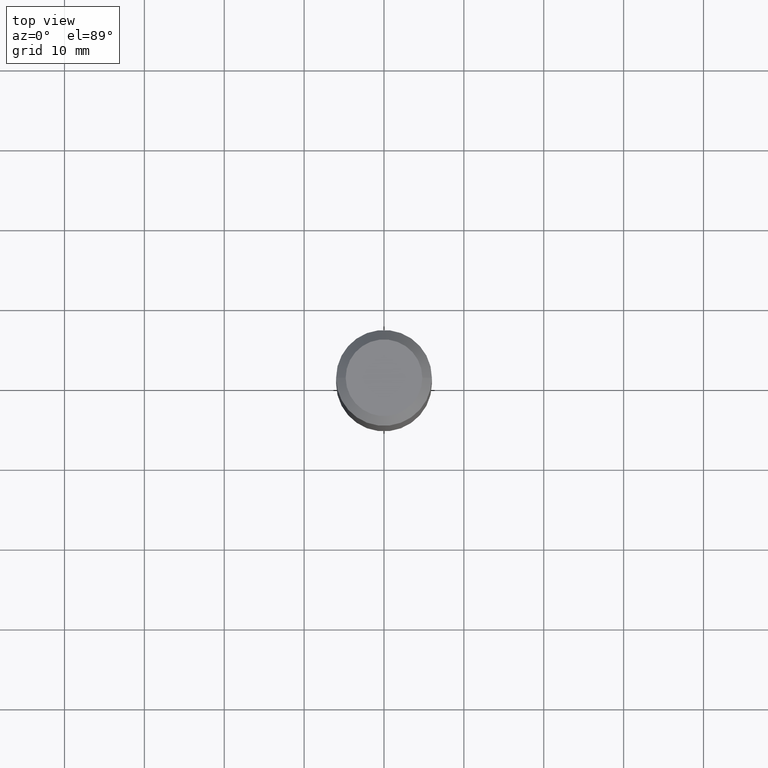
[diagram: clean part render]
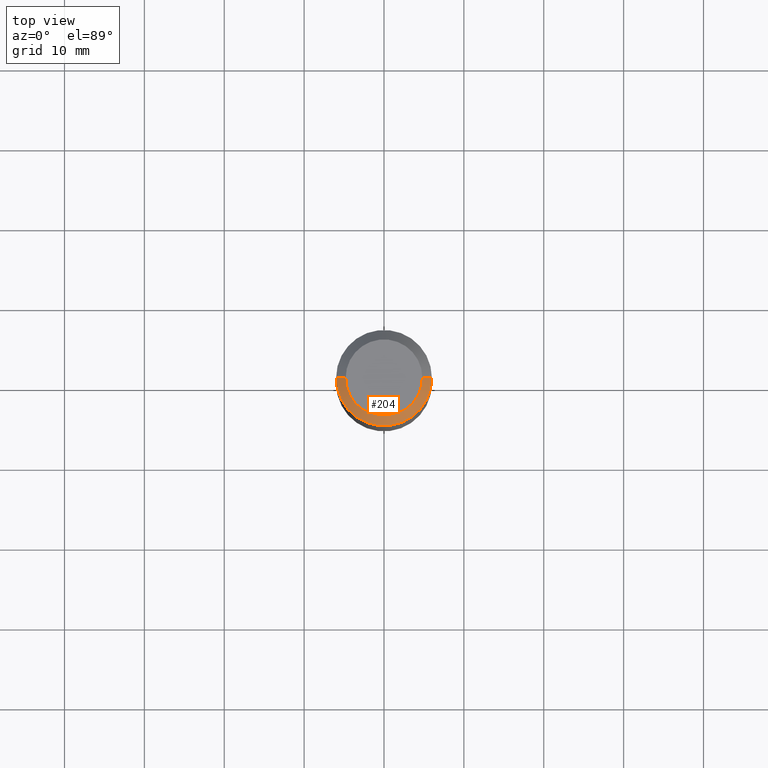
[diagram: same view with one face highlighted and labeled with its STEP entity id]
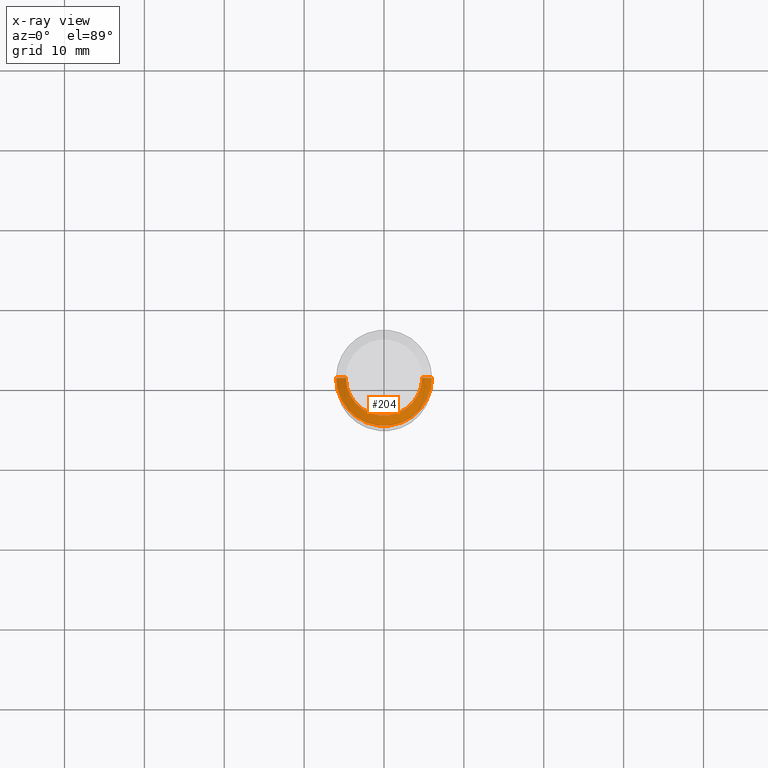
[diagram: x-ray of the same camera — body ghosted, the highlighted face saturated]
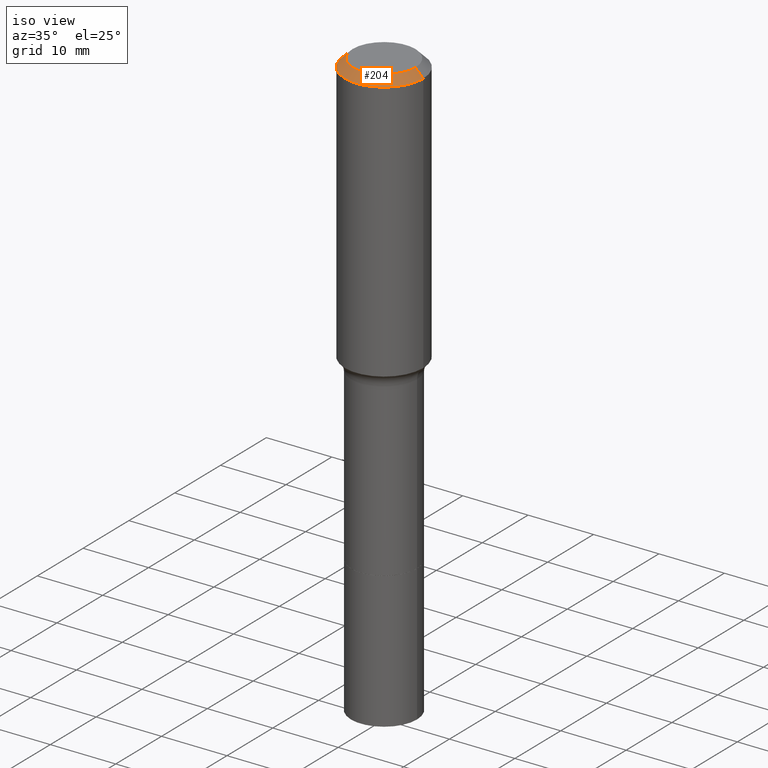
[diagram: same view with one face highlighted and labeled with its STEP entity id]
A machine part, top view. The second image highlights one B-rep face of the part: STEP entity #204.
The next image is the same camera in x-ray: the body ghosted, the highlighted face saturated — about 0% of this face is hidden behind the body in this view.
A second angle (iso view) of the same face is appended — the face is thin or edge-on in the first view.
In plain terms, the highlighted conical surface has half-angle 45 deg.
Its self-contained STEP definition (entity closure, byte-faithful):
#22 = CIRCLE ( 'NONE', #277, 0.2361999999999999933 ) ;
#62 = CARTESIAN_POINT ( 'NONE',  ( -0.1889600000000000168, 1.401969416799070942E-15, 3.855188123706346622E-18 ) ) ;
#75 = ORIENTED_EDGE ( 'NONE', *, *, #267, .F. ) ;
#84 = EDGE_CURVE ( 'NONE', #297, #497, #167, .T. ) ;
#97 = LINE ( 'NONE', #173, #377 ) ;
#110 = AXIS2_PLACEMENT_3D ( 'NONE', #404, #476, #132 ) ;
#117 = ORIENTED_EDGE ( 'NONE', *, *, #510, .T. ) ;
#123 = CARTESIAN_POINT ( 'NONE',  ( 0.2361999999999999933, -1.814313362916447440E-15, -0.04724000000000030258 ) ) ;
#124 = EDGE_CURVE ( 'NONE', #344, #226, #97, .T. ) ;
#132 = DIRECTION ( 'NONE',  ( -1.000000000000000000, 6.982962677686266711E-15, 0.000000000000000000 ) ) ;
#167 = LINE ( 'NONE', #294, #418 ) ;
#173 = CARTESIAN_POINT ( 'NONE',  ( 0.2361999999999999933, -1.785387205520586782E-15, -0.04724000000000030258 ) ) ;
#204 = ADVANCED_FACE ( 'NONE', ( #441 ), #506, .T. ) ;
#207 = CARTESIAN_POINT ( 'NONE',  ( 1.155239464041865857E-30, -1.649375784469512352E-16, -0.04724000000000030258 ) ) ;
#214 = EDGE_LOOP ( 'NONE', ( #462, #75, #269, #117 ) ) ;
#226 = VERTEX_POINT ( 'NONE', #123 ) ;
#260 = AXIS2_PLACEMENT_3D ( 'NONE', #440, #518, #324 ) ;
#267 = EDGE_CURVE ( 'NONE', #297, #344, #428, .T. ) ;
#269 = ORIENTED_EDGE ( 'NONE', *, *, #84, .T. ) ;
#271 = CARTESIAN_POINT ( 'NONE',  ( 0.1889600000000000168, -1.540873453589747738E-15, 3.855188123725863225E-18 ) ) ;
#277 = AXIS2_PLACEMENT_3D ( 'NONE', #207, #318, #439 ) ;
#294 = CARTESIAN_POINT ( 'NONE',  ( -0.2361999999999999933, 1.484438206022545019E-15, -0.04724000000000030258 ) ) ;
#297 = VERTEX_POINT ( 'NONE', #62 ) ;
#318 = DIRECTION ( 'NONE',  ( -2.445468806185136597E-29, 3.491481338843145583E-15, 1.000000000000000000 ) ) ;
#324 = DIRECTION ( 'NONE',  ( 1.000000000000000000, -6.982962677686266711E-15, 4.876185090822587894E-29 ) ) ;
#344 = VERTEX_POINT ( 'NONE', #271 ) ;
#370 = DIRECTION ( 'NONE',  ( -0.7071067811865452413, 2.468850131082233000E-15, -0.7071067811865497932 ) ) ;
#377 = VECTOR ( 'NONE', #444, 39.37007874015748143 ) ;
#394 = CARTESIAN_POINT ( 'NONE',  ( -0.2361999999999999933, -1.234638951750402943E-15, -0.04724000000000030258 ) ) ;
#404 = CARTESIAN_POINT ( 'NONE',  ( 1.155239464041865857E-30, -1.649375784469512352E-16, -0.04724000000000030258 ) ) ;
#418 = VECTOR ( 'NONE', #370, 39.37007874015748143 ) ;
#428 = CIRCLE ( 'NONE', #260, 0.1889600000000000168 ) ;
#439 = DIRECTION ( 'NONE',  ( 1.000000000000000000, -6.982962677686266711E-15, 0.000000000000000000 ) ) ;
#440 = CARTESIAN_POINT ( 'NONE',  ( -9.427742298522546243E-47, 1.346031739168365344E-32, 3.855188123715862256E-18 ) ) ;
#441 = FACE_OUTER_BOUND ( 'NONE', #214, .T. ) ;
#444 = DIRECTION ( 'NONE',  ( 0.7071067811865452413, -7.319954787623248157E-15, -0.7071067811865497932 ) ) ;
#462 = ORIENTED_EDGE ( 'NONE', *, *, #124, .F. ) ;
#476 = DIRECTION ( 'NONE',  ( 2.445468806185136597E-29, -3.491481338843145583E-15, -1.000000000000000000 ) ) ;
#497 = VERTEX_POINT ( 'NONE', #394 ) ;
#506 = CONICAL_SURFACE ( 'NONE', #110, 0.2361999999999999933, 0.7853981633974450594 ) ;
#510 = EDGE_CURVE ( 'NONE', #497, #226, #22, .T. ) ;
#518 = DIRECTION ( 'NONE',  ( -2.445468806185136597E-29, 3.491481338843145583E-15, 1.000000000000000000 ) ) ;